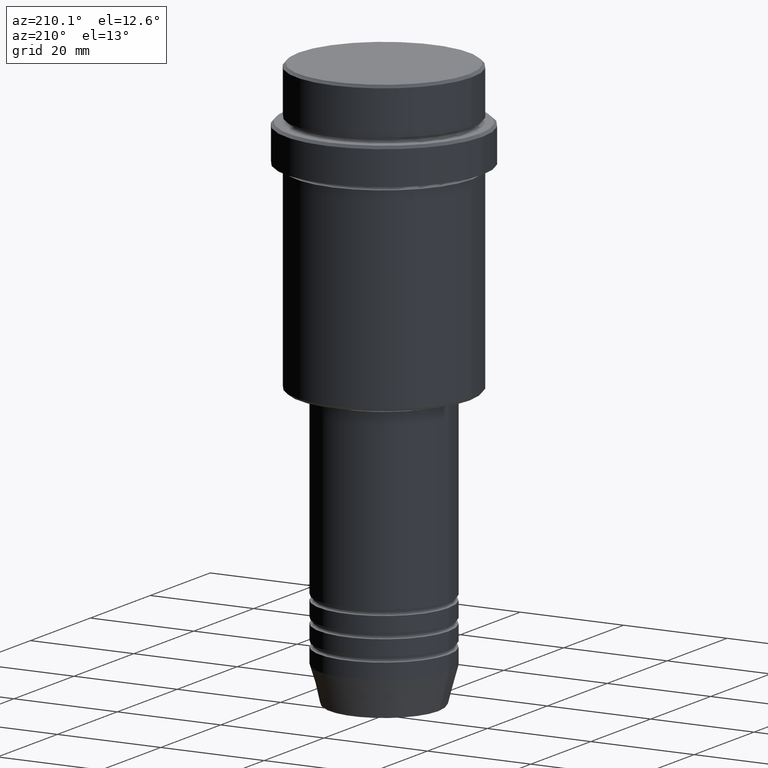
[diagram: clean part render]
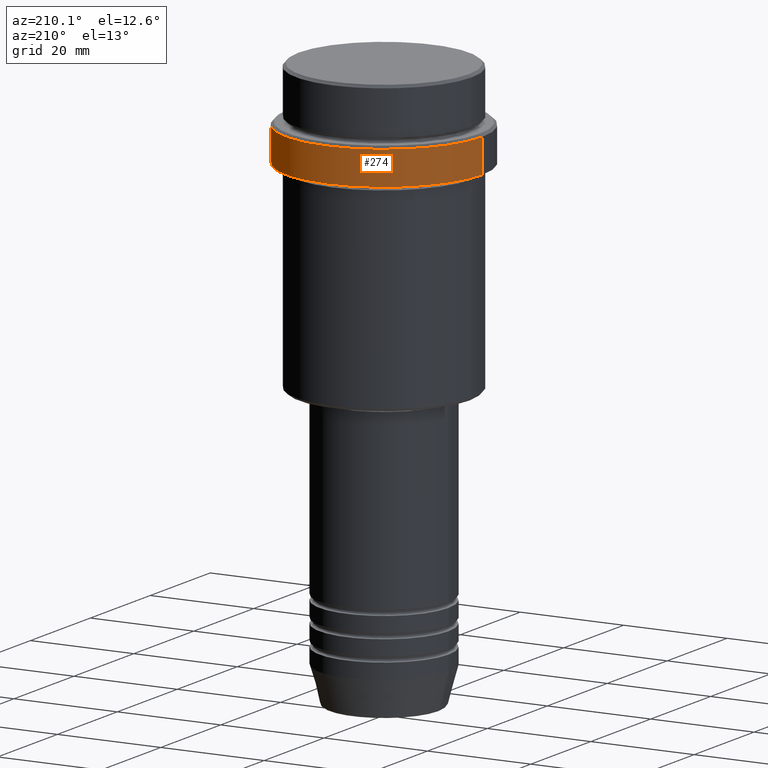
[diagram: same view with one face highlighted and labeled with its STEP entity id]
A machine part, auxiliary view. The second image highlights one B-rep face of the part: STEP entity #274.
In plain terms, the highlighted cylindrical surface (partial cylindrical patch) has radius 19 mm, axis along (-0, -0, 1).
Its self-contained STEP definition (entity closure, byte-faithful):
#3 = CIRCLE ( 'NONE', #797, 18.99999999999999289 ) ;
#80 = CYLINDRICAL_SURFACE ( 'NONE', #634, 18.99999999999999289 ) ;
#125 = ORIENTED_EDGE ( 'NONE', *, *, #301, .T. ) ;
#144 = ORIENTED_EDGE ( 'NONE', *, *, #637, .T. ) ;
#173 = CARTESIAN_POINT ( 'NONE',  ( 18.99999999999999289, 0.000000000000000000, -10.49999999999998224 ) ) ;
#179 = DIRECTION ( 'NONE',  ( 1.000000000000000000, 0.000000000000000000, 0.000000000000000000 ) ) ;
#211 = VERTEX_POINT ( 'NONE', #970 ) ;
#218 = DIRECTION ( 'NONE',  ( -0.000000000000000000, -0.000000000000000000, 1.000000000000000000 ) ) ;
#219 = ORIENTED_EDGE ( 'NONE', *, *, #1048, .T. ) ;
#274 = ADVANCED_FACE ( 'NONE', ( #1387 ), #80, .T. ) ;
#301 = EDGE_CURVE ( 'NONE', #1305, #972, #708, .T. ) ;
#348 = EDGE_LOOP ( 'NONE', ( #125, #144, #219, #1327 ) ) ;
#426 = CARTESIAN_POINT ( 'NONE',  ( 0.000000000000000000, 0.000000000000000000, -17.00000000000000000 ) ) ;
#506 = EDGE_CURVE ( 'NONE', #1305, #832, #847, .T. ) ;
#507 = CARTESIAN_POINT ( 'NONE',  ( 0.000000000000000000, 0.000000000000000000, 0.000000000000000000 ) ) ;
#634 = AXIS2_PLACEMENT_3D ( 'NONE', #507, #981, #635 ) ;
#635 = DIRECTION ( 'NONE',  ( 1.000000000000000000, 0.000000000000000000, 0.000000000000000000 ) ) ;
#637 = EDGE_CURVE ( 'NONE', #972, #211, #1415, .T. ) ;
#708 = CIRCLE ( 'NONE', #802, 18.99999999999999289 ) ;
#736 = CARTESIAN_POINT ( 'NONE',  ( -18.99999999999999289, 2.326828918379970182E-15, -17.00000000000000000 ) ) ;
#797 = AXIS2_PLACEMENT_3D ( 'NONE', #886, #978, #1316 ) ;
#802 = AXIS2_PLACEMENT_3D ( 'NONE', #426, #851, #179 ) ;
#804 = VECTOR ( 'NONE', #1181, 1000.000000000000000 ) ;
#832 = VERTEX_POINT ( 'NONE', #173 ) ;
#847 = LINE ( 'NONE', #1173, #804 ) ;
#851 = DIRECTION ( 'NONE',  ( -0.000000000000000000, -0.000000000000000000, 1.000000000000000000 ) ) ;
#870 = CARTESIAN_POINT ( 'NONE',  ( -18.99999999999999289, 2.326828918379970182E-15, 0.000000000000000000 ) ) ;
#886 = CARTESIAN_POINT ( 'NONE',  ( 0.000000000000000000, 0.000000000000000000, -10.49999999999998224 ) ) ;
#970 = CARTESIAN_POINT ( 'NONE',  ( -18.99999999999999289, 2.326828918379970182E-15, -10.49999999999998224 ) ) ;
#972 = VERTEX_POINT ( 'NONE', #736 ) ;
#978 = DIRECTION ( 'NONE',  ( 0.000000000000000000, 0.000000000000000000, -1.000000000000000000 ) ) ;
#981 = DIRECTION ( 'NONE',  ( -0.000000000000000000, -0.000000000000000000, 1.000000000000000000 ) ) ;
#1048 = EDGE_CURVE ( 'NONE', #211, #832, #3, .T. ) ;
#1173 = CARTESIAN_POINT ( 'NONE',  ( 18.99999999999999289, 0.000000000000000000, 0.000000000000000000 ) ) ;
#1181 = DIRECTION ( 'NONE',  ( -0.000000000000000000, -0.000000000000000000, 1.000000000000000000 ) ) ;
#1288 = VECTOR ( 'NONE', #218, 1000.000000000000000 ) ;
#1305 = VERTEX_POINT ( 'NONE', #1365 ) ;
#1316 = DIRECTION ( 'NONE',  ( 1.000000000000000000, 0.000000000000000000, 0.000000000000000000 ) ) ;
#1327 = ORIENTED_EDGE ( 'NONE', *, *, #506, .F. ) ;
#1365 = CARTESIAN_POINT ( 'NONE',  ( 18.99999999999999289, 0.000000000000000000, -17.00000000000000000 ) ) ;
#1387 = FACE_OUTER_BOUND ( 'NONE', #348, .T. ) ;
#1415 = LINE ( 'NONE', #870, #1288 ) ;